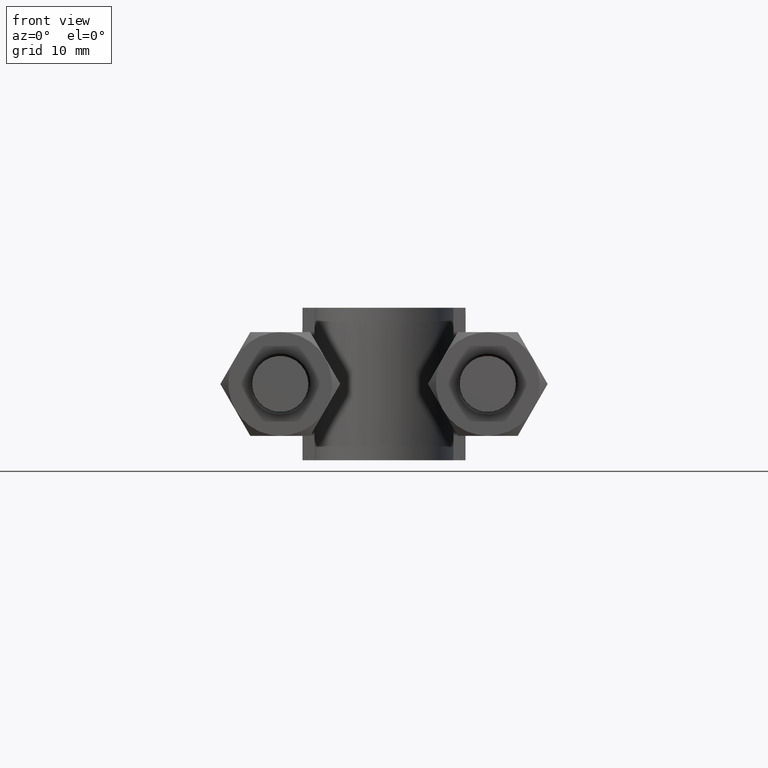
[diagram: clean part render]
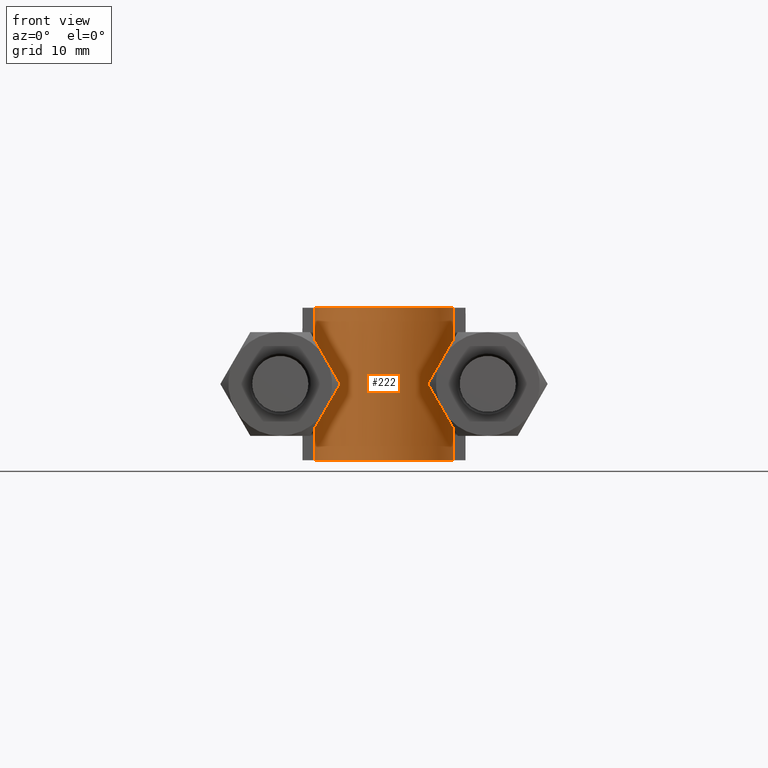
[diagram: same view with one face highlighted and labeled with its STEP entity id]
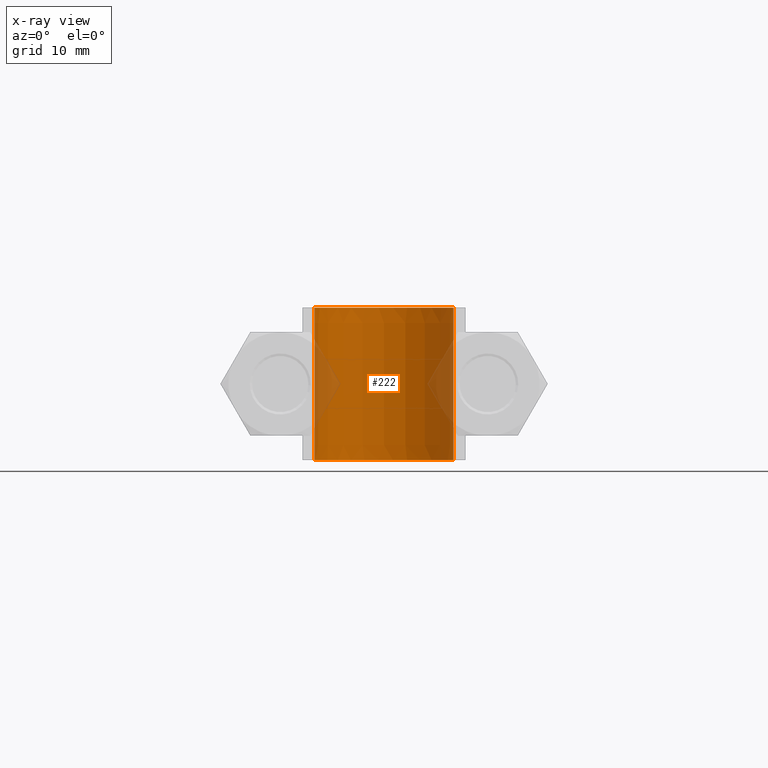
[diagram: x-ray of the same camera — body ghosted, the highlighted face saturated]
A machine part, front view. The second image highlights one B-rep face of the part: STEP entity #222.
The next image is the same camera in x-ray: the body ghosted, the highlighted face saturated — about 11% of this face is hidden behind the body in this view.
In plain terms, the highlighted face is a SurfaceOfExtrusion surface.
Its self-contained STEP definition (entity closure, byte-faithful):
#222 = ADVANCED_FACE( '', ( #304 ), #305, .T. );
#304 = FACE_OUTER_BOUND( '', #476, .T. );
#305 = SURFACE_OF_LINEAR_EXTRUSION( '', #477, #478 );
#476 = EDGE_LOOP( '', ( #1570, #1571, #1572, #1573 ) );
#477 = B_SPLINE_CURVE_WITH_KNOTS( '', 3, ( #1574, #1575, #1576, #1577, #1578, #1579, #1580, #1581, #1582, #1583, #1584, #1585, #1586, #1587, #1588, #1589, #1590, #1591, #1592 ), .UNSPECIFIED., .F., .F., ( 4, 3, 1, 1, 1, 3, 1, 1, 1, 3, 4 ), ( 0.233587786259540, 1.00000000000000, 1.50000000000000, 2.00000000000000, 3.00000000000000, 3.50000000000000, 4.00000000000000, 5.00000000000000, 5.50000000000000, 6.00000000000000, 6.76641221374046 ), .UNSPECIFIED. );
#478 = VECTOR( '', #1593, 1000.00000000000 );
#1570 = ORIENTED_EDGE( '', *, *, #2099, .F. );
#1571 = ORIENTED_EDGE( '', *, *, #2088, .F. );
#1572 = ORIENTED_EDGE( '', *, *, #2092, .T. );
#1573 = ORIENTED_EDGE( '', *, *, #2096, .T. );
#1574 = CARTESIAN_POINT( '', ( -11.3600000000000, 71.6000000000000, -51.4398853821152 ) );
#1575 = CARTESIAN_POINT( '', ( -11.3600000000000, 74.9466666666667, -51.4398853821152 ) );
#1576 = CARTESIAN_POINT( '', ( -11.3600000000000, 78.2933333333333, -51.4398853821152 ) );
#1577 = CARTESIAN_POINT( '', ( -11.3600000000000, 81.6400000000000, -51.4398853821152 ) );
#1578 = CARTESIAN_POINT( '', ( -11.3600000000000, 82.8077712693896, -51.4398853821152 ) );
#1579 = CARTESIAN_POINT( '', ( -10.9694754798677, 85.2135804441069, -51.4398853821152 ) );
#1580 = CARTESIAN_POINT( '', ( -8.80678888755957, 89.5012231129956, -51.4398853821152 ) );
#1581 = CARTESIAN_POINT( '', ( -4.75977254080473, 92.4440020251130, -51.4398853821152 ) );
#1582 = CARTESIAN_POINT( '', ( -1.18994313520117, 92.9957730711349, -51.4398853821152 ) );
#1583 = CARTESIAN_POINT( '', ( 1.83272153620608E-014, 92.9957730711349, -51.4398853821152 ) );
#1584 = CARTESIAN_POINT( '', ( 1.18994313520120, 92.9957730711349, -51.4398853821152 ) );
#1585 = CARTESIAN_POINT( '', ( 4.75977254080476, 92.4440020251129, -51.4398853821152 ) );
#1586 = CARTESIAN_POINT( '', ( 8.80678888755960, 89.5012231129957, -51.4398853821152 ) );
#1587 = CARTESIAN_POINT( '', ( 10.9694754798677, 85.2135804441069, -51.4398853821152 ) );
#1588 = CARTESIAN_POINT( '', ( 11.3600000000000, 82.8077712693896, -51.4398853821152 ) );
#1589 = CARTESIAN_POINT( '', ( 11.3600000000000, 81.6400000000000, -51.4398853821152 ) );
#1590 = CARTESIAN_POINT( '', ( 11.3600000000000, 78.2933333333333, -51.4398853821152 ) );
#1591 = CARTESIAN_POINT( '', ( 11.3600000000000, 74.9466666666667, -51.4398853821152 ) );
#1592 = CARTESIAN_POINT( '', ( 11.3600000000000, 71.6000000000000, -51.4398853821152 ) );
#1593 = DIRECTION( '', ( 0.000000000000000, 0.000000000000000, 1.00000000000000 ) );
#2088 = EDGE_CURVE( '', #2241, #2242, #2243, .T. );
#2092 = EDGE_CURVE( '', #2241, #2249, #2250, .T. );
#2096 = EDGE_CURVE( '', #2249, #2256, #2257, .T. );
#2099 = EDGE_CURVE( '', #2242, #2256, #2261, .T. );
#2241 = VERTEX_POINT( '', #2500 );
#2242 = VERTEX_POINT( '', #2501 );
#2243 = LINE( '', #2502, #2503 );
#2249 = VERTEX_POINT( '', #2541 );
#2250 = B_SPLINE_CURVE_WITH_KNOTS( '', 3, ( #2542, #2543, #2544, #2545, #2546, #2547, #2548, #2549, #2550, #2551, #2552, #2553, #2554, #2555, #2556, #2557, #2558, #2559, #2560 ), .UNSPECIFIED., .F., .F., ( 4, 3, 1, 1, 1, 3, 1, 1, 1, 3, 4 ), ( 0.233587786259540, 1.00000000000000, 1.50000000000000, 2.00000000000000, 3.00000000000000, 3.50000000000000, 4.00000000000000, 5.00000000000000, 5.50000000000000, 6.00000000000000, 6.76641221374046 ), .UNSPECIFIED. );
#2256 = VERTEX_POINT( '', #2594 );
#2257 = LINE( '', #2595, #2596 );
#2261 = B_SPLINE_CURVE_WITH_KNOTS( '', 3, ( #2631, #2632, #2633, #2634, #2635, #2636, #2637, #2638, #2639, #2640, #2641, #2642, #2643, #2644, #2645, #2646, #2647, #2648, #2649 ), .UNSPECIFIED., .F., .F., ( 4, 3, 1, 1, 1, 3, 1, 1, 1, 3, 4 ), ( 0.233587786259540, 1.00000000000000, 1.50000000000000, 2.00000000000000, 3.00000000000000, 3.50000000000000, 4.00000000000000, 5.00000000000000, 5.50000000000000, 6.00000000000000, 6.76641221374046 ), .UNSPECIFIED. );
#2500 = CARTESIAN_POINT( '', ( -11.3600000000000, 71.6000000000000, -12.5000000000000 ) );
#2501 = CARTESIAN_POINT( '', ( -11.3600000000000, 71.6000000000000, 12.5000000000000 ) );
#2502 = CARTESIAN_POINT( '', ( -11.3600000000000, 71.6000000000000, -51.4398853821152 ) );
#2503 = VECTOR( '', #3109, 1000.00000000000 );
#2541 = CARTESIAN_POINT( '', ( 11.3600000000000, 71.6000000000000, -12.5000000000000 ) );
#2542 = CARTESIAN_POINT( '', ( -11.3600000000000, 71.6000000000000, -12.5000000000000 ) );
#2543 = CARTESIAN_POINT( '', ( -11.3600000000000, 74.9466666666667, -12.5000000000000 ) );
#2544 = CARTESIAN_POINT( '', ( -11.3600000000000, 78.2933333333333, -12.5000000000000 ) );
#2545 = CARTESIAN_POINT( '', ( -11.3600000000000, 81.6400000000000, -12.5000000000000 ) );
#2546 = CARTESIAN_POINT( '', ( -11.3600000000000, 82.8077712693896, -12.5000000000000 ) );
#2547 = CARTESIAN_POINT( '', ( -10.9694754798677, 85.2135804441069, -12.5000000000000 ) );
#2548 = CARTESIAN_POINT( '', ( -8.80678888755957, 89.5012231129956, -12.5000000000000 ) );
#2549 = CARTESIAN_POINT( '', ( -4.75977254080473, 92.4440020251130, -12.5000000000000 ) );
#2550 = CARTESIAN_POINT( '', ( -1.18994313520117, 92.9957730711349, -12.5000000000000 ) );
#2551 = CARTESIAN_POINT( '', ( 1.83272153620608E-014, 92.9957730711349, -12.5000000000000 ) );
#2552 = CARTESIAN_POINT( '', ( 1.18994313520120, 92.9957730711349, -12.5000000000000 ) );
#2553 = CARTESIAN_POINT( '', ( 4.75977254080476, 92.4440020251129, -12.5000000000000 ) );
#2554 = CARTESIAN_POINT( '', ( 8.80678888755960, 89.5012231129957, -12.5000000000000 ) );
#2555 = CARTESIAN_POINT( '', ( 10.9694754798677, 85.2135804441069, -12.5000000000000 ) );
#2556 = CARTESIAN_POINT( '', ( 11.3600000000000, 82.8077712693896, -12.5000000000000 ) );
#2557 = CARTESIAN_POINT( '', ( 11.3600000000000, 81.6400000000000, -12.5000000000000 ) );
#2558 = CARTESIAN_POINT( '', ( 11.3600000000000, 78.2933333333333, -12.5000000000000 ) );
#2559 = CARTESIAN_POINT( '', ( 11.3600000000000, 74.9466666666667, -12.5000000000000 ) );
#2560 = CARTESIAN_POINT( '', ( 11.3600000000000, 71.6000000000000, -12.5000000000000 ) );
#2594 = CARTESIAN_POINT( '', ( 11.3600000000000, 71.6000000000000, 12.5000000000000 ) );
#2595 = CARTESIAN_POINT( '', ( 11.3600000000000, 71.6000000000000, -51.4398853821152 ) );
#2596 = VECTOR( '', #3113, 1000.00000000000 );
#2631 = CARTESIAN_POINT( '', ( -11.3600000000000, 71.6000000000000, 12.5000000000000 ) );
#2632 = CARTESIAN_POINT( '', ( -11.3600000000000, 74.9466666666667, 12.5000000000000 ) );
#2633 = CARTESIAN_POINT( '', ( -11.3600000000000, 78.2933333333333, 12.5000000000000 ) );
#2634 = CARTESIAN_POINT( '', ( -11.3600000000000, 81.6400000000000, 12.5000000000000 ) );
#2635 = CARTESIAN_POINT( '', ( -11.3600000000000, 82.8077712693896, 12.5000000000000 ) );
#2636 = CARTESIAN_POINT( '', ( -10.9694754798677, 85.2135804441069, 12.5000000000000 ) );
#2637 = CARTESIAN_POINT( '', ( -8.80678888755957, 89.5012231129956, 12.5000000000000 ) );
#2638 = CARTESIAN_POINT( '', ( -4.75977254080473, 92.4440020251130, 12.5000000000000 ) );
#2639 = CARTESIAN_POINT( '', ( -1.18994313520117, 92.9957730711349, 12.5000000000000 ) );
#2640 = CARTESIAN_POINT( '', ( 1.83272153620608E-014, 92.9957730711349, 12.5000000000000 ) );
#2641 = CARTESIAN_POINT( '', ( 1.18994313520120, 92.9957730711349, 12.5000000000000 ) );
#2642 = CARTESIAN_POINT( '', ( 4.75977254080476, 92.4440020251129, 12.5000000000000 ) );
#2643 = CARTESIAN_POINT( '', ( 8.80678888755960, 89.5012231129957, 12.5000000000000 ) );
#2644 = CARTESIAN_POINT( '', ( 10.9694754798677, 85.2135804441069, 12.5000000000000 ) );
#2645 = CARTESIAN_POINT( '', ( 11.3600000000000, 82.8077712693896, 12.5000000000000 ) );
#2646 = CARTESIAN_POINT( '', ( 11.3600000000000, 81.6400000000000, 12.5000000000000 ) );
#2647 = CARTESIAN_POINT( '', ( 11.3600000000000, 78.2933333333333, 12.5000000000000 ) );
#2648 = CARTESIAN_POINT( '', ( 11.3600000000000, 74.9466666666667, 12.5000000000000 ) );
#2649 = CARTESIAN_POINT( '', ( 11.3600000000000, 71.6000000000000, 12.5000000000000 ) );
#3109 = DIRECTION( '', ( 0.000000000000000, 0.000000000000000, 1.00000000000000 ) );
#3113 = DIRECTION( '', ( 0.000000000000000, 0.000000000000000, 1.00000000000000 ) );